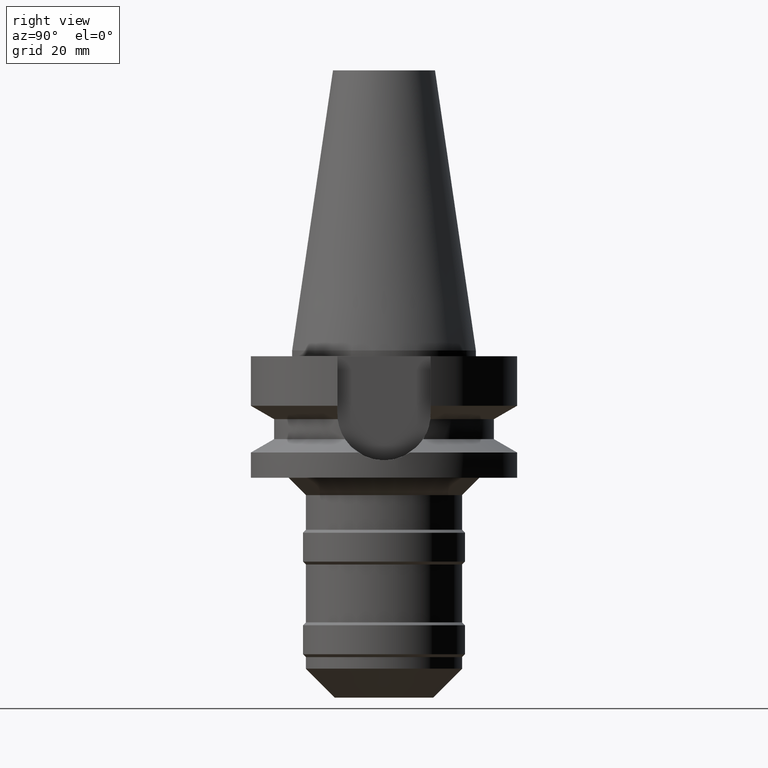
[diagram: clean part render]
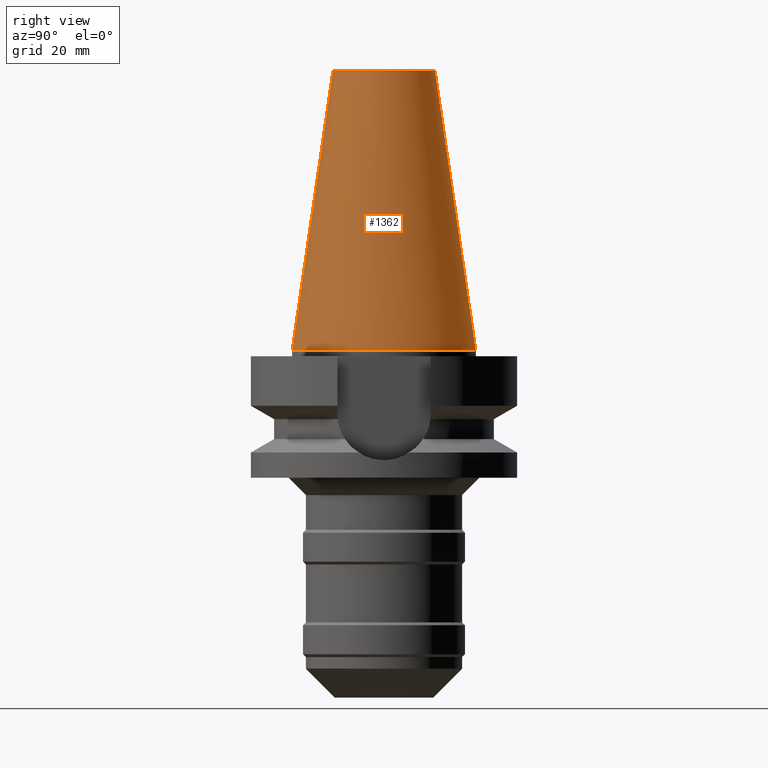
[diagram: same view with one face highlighted and labeled with its STEP entity id]
A machine part, right view. The second image highlights one B-rep face of the part: STEP entity #1362.
In plain terms, the highlighted conical surface has half-angle 8.297 deg.
Its self-contained STEP definition (entity closure, byte-faithful):
#26=CARTESIAN_POINT('',(0.E0,1.521011324541E-14,4.84E1));
#27=DIRECTION('',(0.E0,0.E0,-1.E0));
#28=DIRECTION('',(0.E0,1.E0,0.E0));
#29=AXIS2_PLACEMENT_3D('',#26,#27,#28);
#50=DIRECTION('',(0.E0,-1.443043893540E-1,-9.895333461856E-1));
#51=VECTOR('',#50,4.891194438931E1);
#52=CARTESIAN_POINT('',(0.E0,-8.816791732783E0,4.84E1));
#53=LINE('',#52,#51);
#65=DIRECTION('',(0.E0,1.443043893540E-1,-9.895333461856E-1));
#66=VECTOR('',#65,4.891194438931E1);
#67=CARTESIAN_POINT('',(0.E0,8.816791732783E0,4.84E1));
#68=LINE('',#67,#66);
#72=CARTESIAN_POINT('',(0.E0,1.521011324541E-14,-3.694822225953E-13));
#73=DIRECTION('',(0.E0,0.E0,-1.E0));
#74=DIRECTION('',(0.E0,1.E0,0.E0));
#75=AXIS2_PLACEMENT_3D('',#72,#73,#74);
#1153=CARTESIAN_POINT('',(0.E0,-8.816791732783E0,4.84E1));
#1154=CARTESIAN_POINT('',(0.E0,8.816791732783E0,4.84E1));
#1155=VERTEX_POINT('',#1153);
#1156=VERTEX_POINT('',#1154);
#1313=CARTESIAN_POINT('',(0.E0,1.5875E1,-1.776356839400E-13));
#1314=VERTEX_POINT('',#1313);
#1315=CARTESIAN_POINT('',(0.E0,-1.5875E1,-1.776356839400E-13));
#1316=VERTEX_POINT('',#1315);
#1350=CARTESIAN_POINT('',(0.E0,1.521011324541E-14,2.42E1));
#1351=DIRECTION('',(0.E0,0.E0,-1.E0));
#1352=DIRECTION('',(0.E0,-1.E0,0.E0));
#1353=AXIS2_PLACEMENT_3D('',#1350,#1351,#1352);
#1354=CONICAL_SURFACE('',#1353,1.234589586639E1,8.297E0);
#1355=ORIENTED_EDGE('',*,*,#1340,.T.);
#1357=ORIENTED_EDGE('',*,*,#1356,.T.);
#1358=ORIENTED_EDGE('',*,*,#1343,.F.);
#1359=ORIENTED_EDGE('',*,*,#1324,.F.);
#1360=EDGE_LOOP('',(#1355,#1357,#1358,#1359));
#1361=FACE_OUTER_BOUND('',#1360,.F.);
#30=CIRCLE('',#29,8.816791732783E0);
#76=CIRCLE('',#75,1.5875E1);
#1324=EDGE_CURVE('',#1156,#1155,#30,.T.);
#1340=EDGE_CURVE('',#1156,#1314,#68,.T.);
#1343=EDGE_CURVE('',#1155,#1316,#53,.T.);
#1356=EDGE_CURVE('',#1314,#1316,#76,.T.);
#1362=ADVANCED_FACE('',(#1361),#1354,.T.);